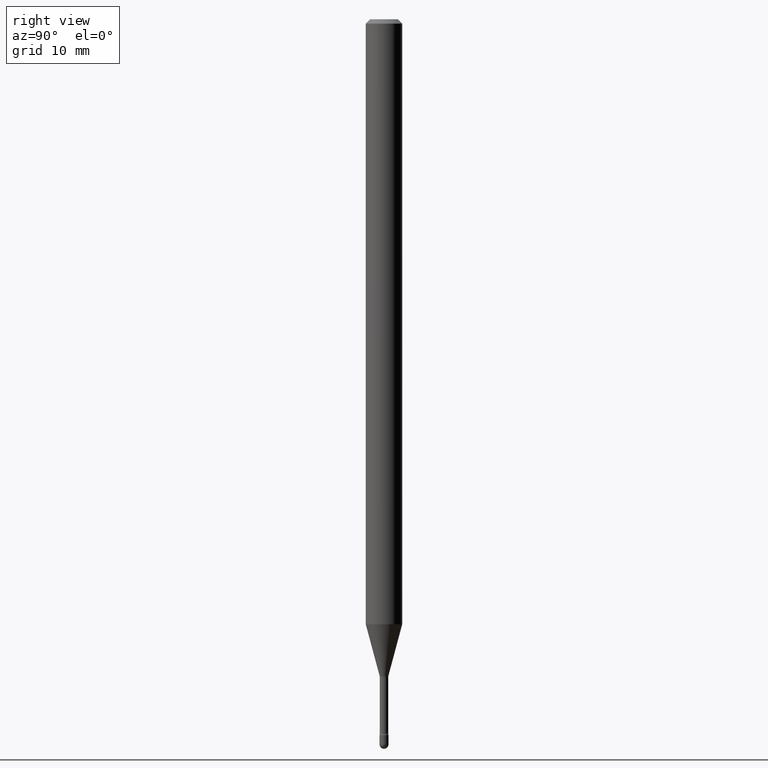
[diagram: clean part render]
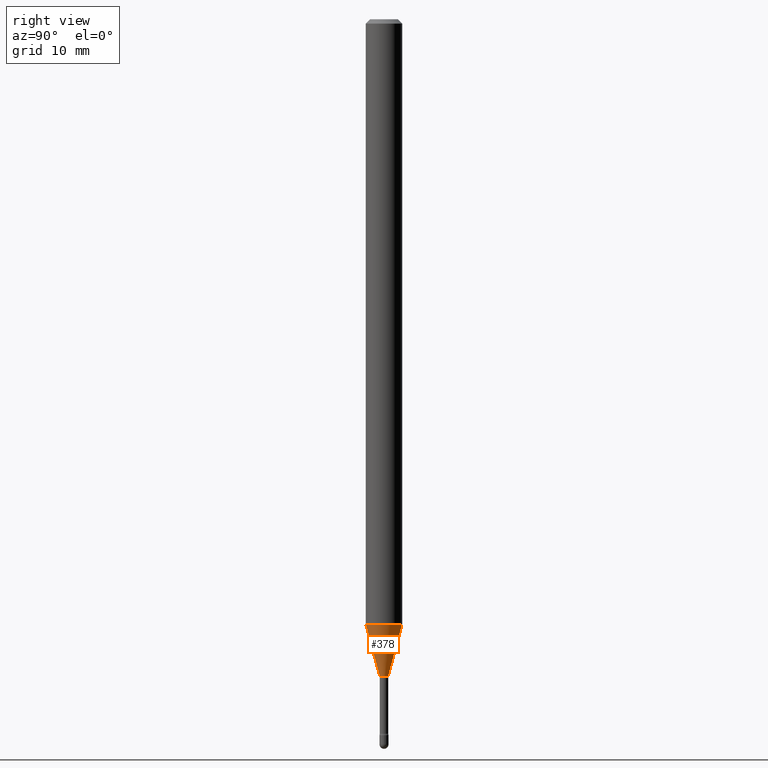
[diagram: same view with one face highlighted and labeled with its STEP entity id]
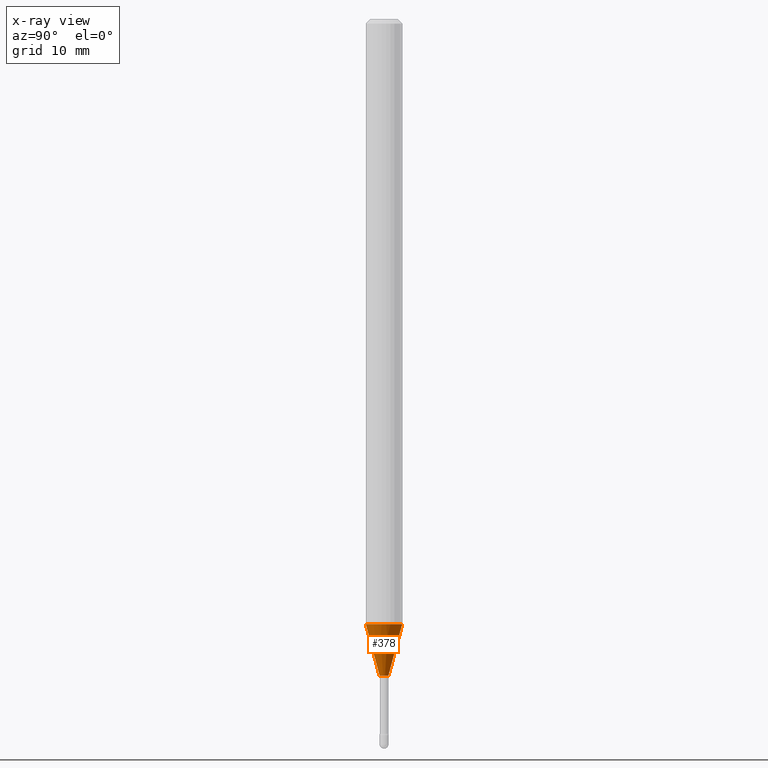
[diagram: x-ray of the same camera — body ghosted, the highlighted face saturated]
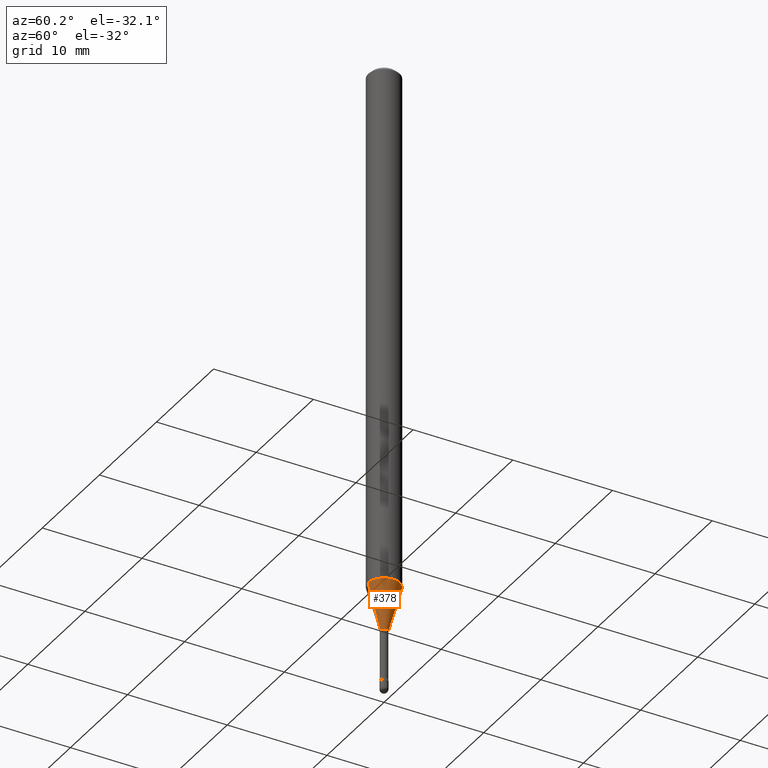
[diagram: same view with one face highlighted and labeled with its STEP entity id]
A machine part, right view. The second image highlights one B-rep face of the part: STEP entity #378.
The next image is the same camera in x-ray: the body ghosted, the highlighted face saturated — about 0% of this face is hidden behind the body in this view.
A second angle (auxiliary view) of the same face is appended — the face is thin or edge-on in the first view.
In plain terms, the highlighted conical surface has half-angle 15 deg.
Its self-contained STEP definition (entity closure, byte-faithful):
#21 = CIRCLE ( 'NONE', #228, 0.06250000000000000000 ) ;
#55 = DIRECTION ( 'NONE',  ( -2.445473815707476510E-29, 3.491474164922030519E-15, 1.000000000000000000 ) ) ;
#66 = ORIENTED_EDGE ( 'NONE', *, *, #161, .T. ) ;
#71 = VERTEX_POINT ( 'NONE', #282 ) ;
#95 = DIRECTION ( 'NONE',  ( -2.445473815707476510E-29, 3.491474164922030519E-15, 1.000000000000000000 ) ) ;
#116 = VERTEX_POINT ( 'NONE', #253 ) ;
#123 = LINE ( 'NONE', #247, #134 ) ;
#134 = VECTOR ( 'NONE', #251, 39.37007874015748854 ) ;
#161 = EDGE_CURVE ( 'NONE', #116, #366, #123, .T. ) ;
#175 = ORIENTED_EDGE ( 'NONE', *, *, #415, .F. ) ;
#192 = CIRCLE ( 'NONE', #511, 0.01506111260566397880 ) ;
#203 = ORIENTED_EDGE ( 'NONE', *, *, #407, .T. ) ;
#212 = DIRECTION ( 'NONE',  ( -6.982962677686265922E-15, -1.000000000000000000, 4.370956789862821150E-15 ) ) ;
#224 = DIRECTION ( 'NONE',  ( -6.982962677686265922E-15, -1.000000000000000000, 0.000000000000000000 ) ) ;
#228 = AXIS2_PLACEMENT_3D ( 'NONE', #509, #516, #212 ) ;
#247 = CARTESIAN_POINT ( 'NONE',  ( 1.070156415442491432E-16, 0.01506111260565612224, -2.250092501787273491 ) ) ;
#251 = DIRECTION ( 'NONE',  ( 1.839019923739597554E-15, 0.2588190451025245697, 0.9659258262890670910 ) ) ;
#253 = CARTESIAN_POINT ( 'NONE',  ( 2.755524256971814314E-16, 0.01506111260565612397, -2.250092501787273491 ) ) ;
#268 = EDGE_LOOP ( 'NONE', ( #203, #66, #175, #278 ) ) ;
#269 = LINE ( 'NONE', #536, #445 ) ;
#278 = ORIENTED_EDGE ( 'NONE', *, *, #545, .F. ) ;
#282 = CARTESIAN_POINT ( 'NONE',  ( -4.364351673553409851E-16, -0.06250000000000724421, -2.073048163777072794 ) ) ;
#293 = CONICAL_SURFACE ( 'NONE', #367, 0.01506111260566397880, 0.2617993877991499074 ) ;
#313 = CARTESIAN_POINT ( 'NONE',  ( -1.051711872097266853E-16, -0.01506111260567183537, -2.250092501787273491 ) ) ;
#350 = CARTESIAN_POINT ( 'NONE',  ( 4.440892098501131033E-16, 0.06249999999999274192, -2.073048163777073238 ) ) ;
#361 = CARTESIAN_POINT ( 'NONE',  ( 5.502542296040505557E-29, -7.856139838675041771E-15, -2.250092501787273491 ) ) ;
#366 = VERTEX_POINT ( 'NONE', #350 ) ;
#367 = AXIS2_PLACEMENT_3D ( 'NONE', #361, #55, #224 ) ;
#378 = ADVANCED_FACE ( 'NONE', ( #442 ), #293, .T. ) ;
#407 = EDGE_CURVE ( 'NONE', #443, #116, #192, .T. ) ;
#415 = EDGE_CURVE ( 'NONE', #71, #366, #21, .T. ) ;
#433 = DIRECTION ( 'NONE',  ( -6.982962677686265922E-15, -1.000000000000000000, 0.000000000000000000 ) ) ;
#442 = FACE_OUTER_BOUND ( 'NONE', #268, .T. ) ;
#443 = VERTEX_POINT ( 'NONE', #313 ) ;
#445 = VECTOR ( 'NONE', #484, 39.37007874015748143 ) ;
#477 = CARTESIAN_POINT ( 'NONE',  ( 5.502542296040505557E-29, -7.856139838675041771E-15, -2.250092501787273491 ) ) ;
#484 = DIRECTION ( 'NONE',  ( -1.807323732225327773E-15, -0.2588190451025178529, 0.9659258262890690894 ) ) ;
#509 = CARTESIAN_POINT ( 'NONE',  ( 5.069585003217296339E-29, -7.237994106466703788E-15, -2.073048163777072794 ) ) ;
#511 = AXIS2_PLACEMENT_3D ( 'NONE', #477, #95, #433 ) ;
#516 = DIRECTION ( 'NONE',  ( -2.445473815707476510E-29, 3.491474164922030519E-15, 1.000000000000000000 ) ) ;
#536 = CARTESIAN_POINT ( 'NONE',  ( -1.051711872097266853E-16, -0.01506111260567183537, -2.250092501787273491 ) ) ;
#545 = EDGE_CURVE ( 'NONE', #443, #71, #269, .T. ) ;